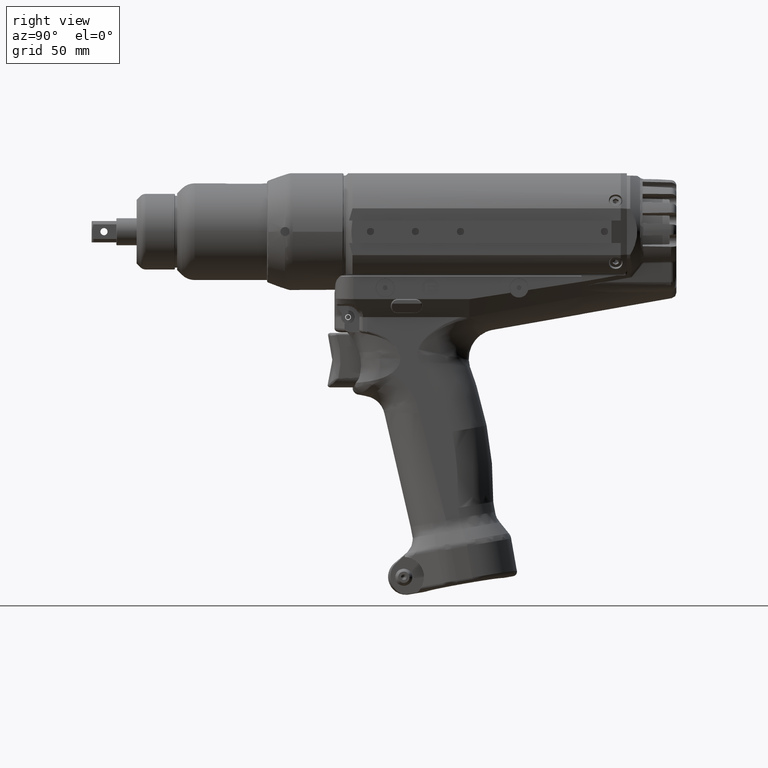
[diagram: clean part render]
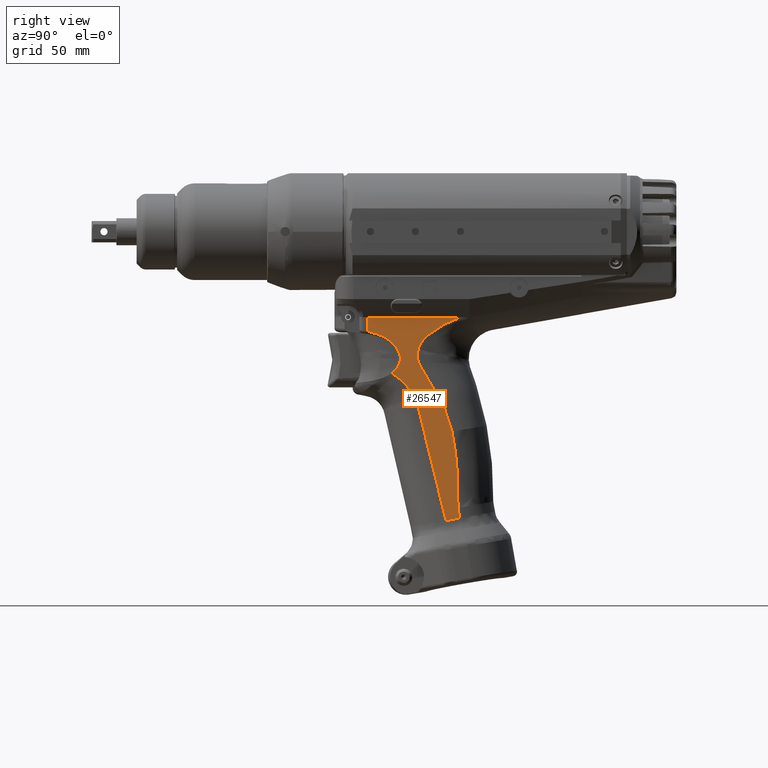
[diagram: same view with one face highlighted and labeled with its STEP entity id]
A machine part, right view. The second image highlights one B-rep face of the part: STEP entity #26547.
In plain terms, the highlighted planar face has unit normal (-0.9999, 0, -0.0109).
Its self-contained STEP definition (entity closure, byte-faithful):
#1692=PLANE('',#28280);
#2756=FACE_OUTER_BOUND('',#4246,.T.);
#4246=EDGE_LOOP('',(#17971,#17972,#17973,#17974,#17975,#17976,#17977,#17978,
#17979,#17980,#17981,#17982,#17983,#17984,#17985,#17986,#17987,#17988,#17989));
#5876=B_SPLINE_CURVE_WITH_KNOTS('',3,(#41228,#41229,#41230,#41231,#41232,
#41233,#41234,#41235,#41236,#41237,#41238,#41239,#41240,#41241,#41242,#41243,
#41244,#41245,#41246,#41247,#41248,#41249,#41250,#41251,#41252,#41253,#41254,
#41255,#41256,#41257,#41258,#41259,#41260,#41261,#41262,#41263,#41264,#41265,
#41266,#41267,#41268,#41269,#41270,#41271,#41272,#41273,#41274,#41275,#41276,
#41277,#41278,#41279,#41280,#41281,#41282,#41283,#41284,#41285),
 .UNSPECIFIED.,.F.,.F.,(4,3,3,3,3,3,3,3,3,3,3,3,3,3,3,3,3,3,3,4),(-24.3934761333663,
-23.9250824544193,-22.988187456572,-22.1116871300815,-21.235186803591,-20.3040838871517,
-19.3729809707125,-18.5207687351934,-17.6685564996742,-14.1078898008131,
-12.3238210145076,-10.539752228202,-8.74478813529345,-6.94982404238488,
-5.16176475116158,-3.37370545993828,-2.52633381548795,-1.67896217103761,
-0.841706468674242,-0.00447112501171354),.UNSPECIFIED.);
#5922=B_SPLINE_CURVE_WITH_KNOTS('',3,(#42125,#42126,#42127,#42128,#42129,
#42130,#42131,#42132,#42133,#42134,#42135,#42136,#42137,#42138,#42139,#42140),
 .UNSPECIFIED.,.F.,.F.,(4,3,3,3,3,4),(-0.00447112501171354,-0.00445076631087435,
1.73973864728295,3.64435240691651,5.57398196026563,6.91873043457296),
 .UNSPECIFIED.);
#5930=B_SPLINE_CURVE_WITH_KNOTS('',3,(#42380,#42381,#42382,#42383,#42384,
#42385,#42386,#42387,#42388,#42389,#42390,#42391),.UNSPECIFIED.,.F.,.F.,
(4,2,2,2,2,4),(-6.24408266172256,-5.46357232900724,-4.68306199629192,-3.12204133086128,
-1.56102066543064,0.),.UNSPECIFIED.);
#5947=B_SPLINE_CURVE_WITH_KNOTS('',3,(#43153,#43154,#43155,#43156,#43157,
#43158,#43159,#43160,#43161,#43162,#43163),.UNSPECIFIED.,.F.,.F.,(4,1,1,
1,1,1,1,1,4),(-17.5886699855604,-15.672631127508,-13.7574129878814,-11.8421816110542,
-9.71342270950494,-7.43435441818914,-5.03715648347555,-2.43703612575724,
0.),.UNSPECIFIED.);
#5954=B_SPLINE_CURVE_WITH_KNOTS('',3,(#43579,#43580,#43581,#43582,#43583,
#43584,#43585,#43586,#43587,#43588,#43589,#43590,#43591),.UNSPECIFIED.,
 .F.,.F.,(4,3,3,3,4),(0.,1.48689199211744,2.23033798817616,2.60206098620552,
2.97378398423488),.UNSPECIFIED.);
#5980=B_SPLINE_CURVE_WITH_KNOTS('',3,(#44639,#44640,#44641,#44642,#44643,
#44644),.UNSPECIFIED.,.F.,.F.,(4,2,4),(1.1081651686788E-5,2.07307480988454,
4.14614998655319),.UNSPECIFIED.);
#5981=B_SPLINE_CURVE_WITH_KNOTS('',3,(#44647,#44648,#44649,#44650,#44651,
#44652,#44653,#44654,#44655,#44656,#44657,#44658,#44659,#44660,#44661,#44662,
#44663,#44664,#44665,#44666,#44667,#44668),.UNSPECIFIED.,.F.,.F.,(4,3,3,
3,3,3,3,4),(20.4233136063262,21.9761058783196,23.5300501859846,25.0820865991997,
25.8595747815473,26.2485934611118,26.4431028008941,26.6376121406764),
 .UNSPECIFIED.);
#5982=B_SPLINE_CURVE_WITH_KNOTS('',3,(#44670,#44671,#44672,#44673),
 .UNSPECIFIED.,.F.,.F.,(4,4),(-7.97415008083827,-7.75616295434578),
 .UNSPECIFIED.);
#5983=B_SPLINE_CURVE_WITH_KNOTS('',3,(#44675,#44676,#44677,#44678,#44679,
#44680),.UNSPECIFIED.,.F.,.F.,(4,2,4),(-0.00118202678072736,-0.000618526325075613,
-5.44028565653205E-5),.UNSPECIFIED.);
#5984=B_SPLINE_CURVE_WITH_KNOTS('',3,(#44682,#44683,#44684,#44685,#44686,
#44687,#44688),.UNSPECIFIED.,.F.,.F.,(4,3,4),(-7.75095235003949,-7.75010030636978,
-7.65840554616275),.UNSPECIFIED.);
#5985=B_SPLINE_CURVE_WITH_KNOTS('',3,(#44690,#44691,#44692,#44693),
 .UNSPECIFIED.,.F.,.F.,(4,4),(-7.65840554616275,-7.63448467278944),
 .UNSPECIFIED.);
#5986=B_SPLINE_CURVE_WITH_KNOTS('',3,(#44695,#44696,#44697,#44698,#44699,
#44700,#44701,#44702,#44703,#44704,#44705,#44706,#44707,#44708,#44709,#44710,
#44711,#44712,#44713,#44714,#44715,#44716,#44717,#44718,#44719,#44720,#44721,
#44722,#44723,#44724,#44725),.UNSPECIFIED.,.F.,.F.,(4,3,3,3,3,3,3,3,3,3,
4),(-19.3844832505035,-18.9973493116529,-18.6117598995635,-18.3050002551452,
-18.2276842926308,-17.9210446763746,-17.8450926097978,-17.7307072142352,
-17.4634510021741,-17.0823978928591,-16.704075655191),.UNSPECIFIED.);
#5987=B_SPLINE_CURVE_WITH_KNOTS('',3,(#44727,#44728,#44729,#44730,#44731,
#44732,#44733,#44734,#44735,#44736,#44737,#44738,#44739,#44740),
 .UNSPECIFIED.,.F.,.F.,(4,2,2,2,2,2,4),(-16.7040756551934,-15.2337053032616,
-12.7368533167565,-10.2400013302513,-7.71910764693517,-5.19821396361902,
-3.94376769649692),.UNSPECIFIED.);
#5988=B_SPLINE_CURVE_WITH_KNOTS('',3,(#44742,#44743,#44744,#44745,#44746,
#44747,#44748,#44749,#44750,#44751,#44752,#44753,#44754,#44755,#44756,#44757,
#44758,#44759,#44760,#44761,#44762,#44763,#44764,#44765,#44766,#44767,#44768,
#44769,#44770,#44771,#44772,#44773,#44774,#44775,#44776,#44777,#44778,#44779,
#44780,#44781,#44782,#44783,#44784,#44785,#44786,#44787,#44788,#44789,#44790,
#44791,#44792,#44793,#44794,#44795,#44796,#44797,#44798,#44799,#44800,#44801,
#44802),.UNSPECIFIED.,.F.,.F.,(4,3,3,3,3,3,3,3,3,3,3,3,3,3,3,3,3,3,3,3,
4),(-3.94376769649643,-3.898660472714,-3.59717298899809,-3.38094055626665,
-3.07964959058576,-2.81869268346581,-2.67440053861103,-2.61551185927288,
-2.58257943400829,-2.24152410404669,-1.90596182350879,-1.66409435445553,
-1.3793206870938,-1.13048736599639,-1.09454701973207,-0.846963461157136,
-0.618629049818435,-0.538422388597726,-0.290249238729809,-0.0575168969333893,
1.08123714580309E-12),.UNSPECIFIED.);
#5989=B_SPLINE_CURVE_WITH_KNOTS('',3,(#44807,#44808,#44809,#44810,#44811,
#44812,#44813,#44814,#44815,#44816,#44817,#44818),.UNSPECIFIED.,.F.,.F.,
(4,2,2,2,2,4),(-34.0529674809779,-31.9246570134168,-29.7963465458556,-25.5397256107334,
-17.0264837404889,0.),.UNSPECIFIED.);
#5990=B_SPLINE_CURVE_WITH_KNOTS('',3,(#44819,#44820,#44821,#44822,#44823,
#44824,#44825,#44826,#44827,#44828,#44829,#44830,#44831,#44832,#44833,#44834,
#44835,#44836,#44837,#44838),.UNSPECIFIED.,.F.,.F.,(4,2,2,2,2,2,2,2,2,4),
(2.41384233712228E-8,4.41197645880191,8.82395291760381,13.2359293764057,
17.6479058352076,22.0598822940095,24.2658705234105,26.4718587528114,28.6778469822124,
29.2621880037137),.UNSPECIFIED.);
#7195=LINE('',#44645,#8748);
#7196=LINE('',#44803,#8749);
#7197=LINE('',#44805,#8750);
#8748=VECTOR('',#31418,10.);
#8749=VECTOR('',#31419,10.);
#8750=VECTOR('',#31420,10.);
#10494=VERTEX_POINT('',#41183);
#10498=VERTEX_POINT('',#41226);
#10514=VERTEX_POINT('',#41489);
#10580=VERTEX_POINT('',#42124);
#10587=VERTEX_POINT('',#42328);
#10590=VERTEX_POINT('',#42369);
#10606=VERTEX_POINT('',#43129);
#10607=VERTEX_POINT('',#43152);
#10612=VERTEX_POINT('',#43577);
#10638=VERTEX_POINT('',#44646);
#10639=VERTEX_POINT('',#44669);
#10640=VERTEX_POINT('',#44674);
#10641=VERTEX_POINT('',#44681);
#10642=VERTEX_POINT('',#44689);
#10643=VERTEX_POINT('',#44694);
#10644=VERTEX_POINT('',#44726);
#10645=VERTEX_POINT('',#44741);
#10646=VERTEX_POINT('',#44804);
#10647=VERTEX_POINT('',#44806);
#13287=EDGE_CURVE('',#10498,#10494,#5876,.T.);
#13392=EDGE_CURVE('',#10494,#10580,#5922,.T.);
#13404=EDGE_CURVE('',#10590,#10587,#5930,.T.);
#13428=EDGE_CURVE('',#10606,#10607,#5947,.T.);
#13436=EDGE_CURVE('',#10612,#10606,#5954,.T.);
#13470=EDGE_CURVE('',#10498,#10514,#5980,.T.);
#13471=EDGE_CURVE('',#10514,#10607,#7195,.T.);
#13472=EDGE_CURVE('',#10612,#10638,#5981,.T.);
#13473=EDGE_CURVE('',#10638,#10639,#5982,.T.);
#13474=EDGE_CURVE('',#10640,#10639,#5983,.T.);
#13475=EDGE_CURVE('',#10640,#10641,#5984,.T.);
#13476=EDGE_CURVE('',#10641,#10642,#5985,.T.);
#13477=EDGE_CURVE('',#10642,#10643,#5986,.T.);
#13478=EDGE_CURVE('',#10643,#10644,#5987,.T.);
#13479=EDGE_CURVE('',#10644,#10645,#5988,.T.);
#13480=EDGE_CURVE('',#10645,#10587,#7196,.T.);
#13481=EDGE_CURVE('',#10590,#10646,#7197,.T.);
#13482=EDGE_CURVE('',#10646,#10647,#5989,.T.);
#13483=EDGE_CURVE('',#10647,#10580,#5990,.T.);
#17971=ORIENTED_EDGE('',*,*,#13470,.T.);
#17972=ORIENTED_EDGE('',*,*,#13471,.T.);
#17973=ORIENTED_EDGE('',*,*,#13428,.F.);
#17974=ORIENTED_EDGE('',*,*,#13436,.F.);
#17975=ORIENTED_EDGE('',*,*,#13472,.T.);
#17976=ORIENTED_EDGE('',*,*,#13473,.T.);
#17977=ORIENTED_EDGE('',*,*,#13474,.F.);
#17978=ORIENTED_EDGE('',*,*,#13475,.T.);
#17979=ORIENTED_EDGE('',*,*,#13476,.T.);
#17980=ORIENTED_EDGE('',*,*,#13477,.T.);
#17981=ORIENTED_EDGE('',*,*,#13478,.T.);
#17982=ORIENTED_EDGE('',*,*,#13479,.T.);
#17983=ORIENTED_EDGE('',*,*,#13480,.T.);
#17984=ORIENTED_EDGE('',*,*,#13404,.F.);
#17985=ORIENTED_EDGE('',*,*,#13481,.T.);
#17986=ORIENTED_EDGE('',*,*,#13482,.T.);
#17987=ORIENTED_EDGE('',*,*,#13483,.T.);
#17988=ORIENTED_EDGE('',*,*,#13392,.F.);
#17989=ORIENTED_EDGE('',*,*,#13287,.F.);
#26547=ADVANCED_FACE('',(#2756),#1692,.F.);
#28280=AXIS2_PLACEMENT_3D('',#44638,#31416,#31417);
#31416=DIRECTION('center_axis',(-0.999940931510034,3.35670745567697E-15,
-0.010868923168598));
#31417=DIRECTION('ref_axis',(3.35650549535912E-15,1.,3.68227857356694E-17));
#31418=DIRECTION('',(0.0108689231680924,3.18609054585298E-14,-0.99994093151004));
#31419=DIRECTION('',(0.0105560679108472,0.23820207209503,-0.971158247805112));
#31420=DIRECTION('',(-0.0107038188680129,-0.173638229796094,0.984751335827944));
#41183=CARTESIAN_POINT('',(15.1558711698509,125.171963020733,-52.3401476261497));
#41226=CARTESIAN_POINT('',(14.999999647428,143.961452879267,-37.9999676564713));
#41228=CARTESIAN_POINT('Ctrl Pts',(14.9999998699428,143.961389048973,-37.9999880346182));
#41229=CARTESIAN_POINT('Ctrl Pts',(15.0005160295455,143.812648235737,-38.0474747180641));
#41230=CARTESIAN_POINT('Ctrl Pts',(15.0010478514908,143.664365869685,-38.0964023370349));
#41231=CARTESIAN_POINT('Ctrl Pts',(15.0015953554624,143.516581610311,-38.1467727024196));
#41232=CARTESIAN_POINT('Ctrl Pts',(15.0026904892256,143.220979129765,-38.2475250086308));
#41233=CARTESIAN_POINT('Ctrl Pts',(15.0038483655099,142.927369533828,-38.3540496267845));
#41234=CARTESIAN_POINT('Ctrl Pts',(15.0050542851966,142.635445314385,-38.4649942379659));
#41235=CARTESIAN_POINT('Ctrl Pts',(15.0061824681857,142.362339284104,-38.5687870729648));
#41236=CARTESIAN_POINT('Ctrl Pts',(15.0073527002144,142.090708346328,-38.6764484196063));
#41237=CARTESIAN_POINT('Ctrl Pts',(15.0085560374265,141.820332589124,-38.7871554431151));
#41238=CARTESIAN_POINT('Ctrl Pts',(15.0097593746385,141.549956831919,-38.8978624666238));
#41239=CARTESIAN_POINT('Ctrl Pts',(15.0109958170339,141.280836255287,-39.0116151669999));
#41240=CARTESIAN_POINT('Ctrl Pts',(15.0122555689134,141.012641446003,-39.12751233991));
#41241=CARTESIAN_POINT('Ctrl Pts',(15.0135937984765,140.727739134447,-39.2506294597127));
#41242=CARTESIAN_POINT('Ctrl Pts',(15.0149583321652,140.443881526437,-39.3761665590753));
#41243=CARTESIAN_POINT('Ctrl Pts',(15.0163374693176,140.160639330941,-39.5030471770953));
#41244=CARTESIAN_POINT('Ctrl Pts',(15.01771660647,139.877397135445,-39.6299277951152));
#41245=CARTESIAN_POINT('Ctrl Pts',(15.019110347086,139.594770352462,-39.7581519317925));
#41246=CARTESIAN_POINT('Ctrl Pts',(15.0205249205934,139.313003127159,-39.8882926944744));
#41247=CARTESIAN_POINT('Ctrl Pts',(15.0218196398235,139.055109533732,-40.0074068636378));
#41248=CARTESIAN_POINT('Ctrl Pts',(15.0231318112344,138.797936011074,-40.1281266334423));
#41249=CARTESIAN_POINT('Ctrl Pts',(15.0244609841946,138.541537674489,-40.2504105457811));
#41250=CARTESIAN_POINT('Ctrl Pts',(15.0257901571548,138.285139337903,-40.37269445812));
#41251=CARTESIAN_POINT('Ctrl Pts',(15.0271363316643,138.029516187389,-40.4965425129933));
#41252=CARTESIAN_POINT('Ctrl Pts',(15.0285048241678,137.774885143778,-40.6224438233178));
#41253=CARTESIAN_POINT('Ctrl Pts',(15.0342225849343,136.710999600138,-41.148477813832));
#41254=CARTESIAN_POINT('Ctrl Pts',(15.0403299486828,135.664433167134,-41.7103552786972));
#41255=CARTESIAN_POINT('Ctrl Pts',(15.0469257459552,134.644453238441,-42.3171686277561));
#41256=CARTESIAN_POINT('Ctrl Pts',(15.0502305641338,134.133393229927,-42.6212119001904));
#41257=CARTESIAN_POINT('Ctrl Pts',(15.0536580036386,133.629007768215,-42.9365363346255));
#41258=CARTESIAN_POINT('Ctrl Pts',(15.0572115562324,133.132237531042,-43.2634631732579));
#41259=CARTESIAN_POINT('Ctrl Pts',(15.0607651088262,132.635467293869,-43.5903900118904));
#41260=CARTESIAN_POINT('Ctrl Pts',(15.0644447745092,132.146312281235,-43.9289192547201));
#41261=CARTESIAN_POINT('Ctrl Pts',(15.0682710528773,131.667027830585,-44.2809368645917));
#41262=CARTESIAN_POINT('Ctrl Pts',(15.0721206983243,131.184816390191,-44.6351042457157));
#41263=CARTESIAN_POINT('Ctrl Pts',(15.0761187526517,130.712596438936,-45.002925243829));
#41264=CARTESIAN_POINT('Ctrl Pts',(15.0802788032596,130.252696800925,-45.3856498997554));
#41265=CARTESIAN_POINT('Ctrl Pts',(15.0844388538675,129.792797162914,-45.7683745556818));
#41266=CARTESIAN_POINT('Ctrl Pts',(15.0887609007559,129.345217838148,-46.1660028694213));
#41267=CARTESIAN_POINT('Ctrl Pts',(15.0932806422594,128.915011758345,-46.5818190877376));
#41268=CARTESIAN_POINT('Ctrl Pts',(15.0977829973879,128.486460579426,-46.996035759558));
#41269=CARTESIAN_POINT('Ctrl Pts',(15.102481529088,128.075149241036,-47.428300675971));
#41270=CARTESIAN_POINT('Ctrl Pts',(15.107412948014,127.68865280925,-47.8819912171566));
#41271=CARTESIAN_POINT('Ctrl Pts',(15.1123443669399,127.302156377464,-48.3356817583422));
#41272=CARTESIAN_POINT('Ctrl Pts',(15.1175086730916,126.940474852281,-48.8107979243004));
#41273=CARTESIAN_POINT('Ctrl Pts',(15.1229134484271,126.611917786538,-49.3080372551614));
#41274=CARTESIAN_POINT('Ctrl Pts',(15.1254748027325,126.456212691936,-49.5436818512579));
#41275=CARTESIAN_POINT('Ctrl Pts',(15.1280901632169,126.307946910182,-49.7842950158283));
#41276=CARTESIAN_POINT('Ctrl Pts',(15.1307572126508,126.168037772011,-50.0296635637438));
#41277=CARTESIAN_POINT('Ctrl Pts',(15.1334242620846,126.02812863384,-50.2750321116593));
#41278=CARTESIAN_POINT('Ctrl Pts',(15.1361430004679,125.896576139252,-50.5251560429199));
#41279=CARTESIAN_POINT('Ctrl Pts',(15.1389116016931,125.774539811563,-50.7798673556399));
#41280=CARTESIAN_POINT('Ctrl Pts',(15.1416471512936,125.653960356348,-51.0315379188786));
#41281=CARTESIAN_POINT('Ctrl Pts',(15.1444313803147,125.542671215803,-51.2876869888241));
#41282=CARTESIAN_POINT('Ctrl Pts',(15.1472598548581,125.441842049554,-51.5479066468163));
#41283=CARTESIAN_POINT('Ctrl Pts',(15.1500882606243,125.341015335066,-51.8081199773101));
#41284=CARTESIAN_POINT('Ctrl Pts',(15.1529609097611,125.25064808619,-52.0724036978923));
#41285=CARTESIAN_POINT('Ctrl Pts',(15.1558711698509,125.171963020733,-52.3401476261497));
#41489=CARTESIAN_POINT('',(15.0000000000035,102.49999999999,-37.9999999999456));
#42124=CARTESIAN_POINT('',(15.2291780243094,125.775799653277,-59.0837872268992));
#42125=CARTESIAN_POINT('Ctrl Pts',(15.1558711698509,125.171963020733,-52.3401476261497));
#42126=CARTESIAN_POINT('Ctrl Pts',(15.1558712406184,125.171961107382,-52.3401541367665));
#42127=CARTESIAN_POINT('Ctrl Pts',(15.155871311386,125.171959194037,-52.3401606473854));
#42128=CARTESIAN_POINT('Ctrl Pts',(15.1558713821537,125.171957280699,-52.3401671580063));
#42129=CARTESIAN_POINT('Ctrl Pts',(15.1619318994902,125.008099602806,-52.897734752964));
#42130=CARTESIAN_POINT('Ctrl Pts',(15.1681625716927,124.894625846445,-53.4709565955931));
#42131=CARTESIAN_POINT('Ctrl Pts',(15.1744535447417,124.840326996598,-54.0497261161034));
#42132=CARTESIAN_POINT('Ctrl Pts',(15.1813231391431,124.781033931439,-54.681728801035));
#42133=CARTESIAN_POINT('Ctrl Pts',(15.1882646370315,124.792301768158,-55.3203466067616));
#42134=CARTESIAN_POINT('Ctrl Pts',(15.1951130403756,124.869455468561,-55.9503997144234));
#42135=CARTESIAN_POINT('Ctrl Pts',(15.2020513927945,124.947622529832,-56.5887281369575));
#42136=CARTESIAN_POINT('Ctrl Pts',(15.2088941891436,125.093417551913,-57.2182654010749));
#42137=CARTESIAN_POINT('Ctrl Pts',(15.2155470037483,125.291182423804,-57.8303243447108));
#42138=CARTESIAN_POINT('Ctrl Pts',(15.2201833145231,125.429003701098,-58.2568649359927));
#42139=CARTESIAN_POINT('Ctrl Pts',(15.2247273583601,125.59206476613,-58.6749169689939));
#42140=CARTESIAN_POINT('Ctrl Pts',(15.2291716010589,125.775799651956,-59.0837872972794));
#42328=CARTESIAN_POINT('',(15.9825582871778,137.56783920862,-128.395362420582));
#42369=CARTESIAN_POINT('',(15.9708522178868,143.67564565747,-127.31840404528));
#42380=CARTESIAN_POINT('Ctrl Pts',(15.9708522178868,143.67564565747,-127.31840404528));
#42381=CARTESIAN_POINT('Ctrl Pts',(15.971339761677,143.42115890156,-127.363258073978));
#42382=CARTESIAN_POINT('Ctrl Pts',(15.9718273467927,143.16666394453,-127.408115904624));
#42383=CARTESIAN_POINT('Ctrl Pts',(15.9728025924035,142.65766114738,-127.497838500819));
#42384=CARTESIAN_POINT('Ctrl Pts',(15.9732902217631,142.40316955707,-127.542700401895));
#42385=CARTESIAN_POINT('Ctrl Pts',(15.974753175511,141.63969977401,-127.677292146699));
#42386=CARTESIAN_POINT('Ctrl Pts',(15.9757285825478,141.13071770756,-127.767029594078));
#42387=CARTESIAN_POINT('Ctrl Pts',(15.9776796450045,140.11272640543,-127.946527340134));
#42388=CARTESIAN_POINT('Ctrl Pts',(15.9786552083695,139.60376519532,-128.036279169746));
#42389=CARTESIAN_POINT('Ctrl Pts',(15.9806066447896,138.58578137278,-128.215811320567));
#42390=CARTESIAN_POINT('Ctrl Pts',(15.9815823680846,138.07683688189,-128.305577863828));
#42391=CARTESIAN_POINT('Ctrl Pts',(15.9825582871778,137.56783920862,-128.395362420582));
#43129=CARTESIAN_POINT('',(15.1688973131722,116.57692770531,-53.5385526784419));
#43152=CARTESIAN_POINT('',(15.0681802542457,102.49999999999,-44.2725833905217));
#43153=CARTESIAN_POINT('Ctrl Pts',(15.1688973131723,116.576927705311,-53.5385526784418));
#43154=CARTESIAN_POINT('Ctrl Pts',(15.1625040729347,116.32825763181,-52.9503748132206));
#43155=CARTESIAN_POINT('Ctrl Pts',(15.1500767325315,115.75162569241,-51.807059434948));
#43156=CARTESIAN_POINT('Ctrl Pts',(15.1330791029232,114.63528885117,-50.2432775266622));
#43157=CARTESIAN_POINT('Ctrl Pts',(15.1176490432641,113.23746246197,-48.8237120242572));
#43158=CARTESIAN_POINT('Ctrl Pts',(15.1039325726901,111.54209595244,-47.5617967247662));
#43159=CARTESIAN_POINT('Ctrl Pts',(15.0920538220522,109.54918523333,-46.4689516566661));
#43160=CARTESIAN_POINT('Ctrl Pts',(15.082058445801,107.30158884701,-45.549377032257));
#43161=CARTESIAN_POINT('Ctrl Pts',(15.0741459308862,104.93066526513,-44.8214256506598));
#43162=CARTESIAN_POINT('Ctrl Pts',(15.069979083427,103.29529043867,-44.4380756781941));
#43163=CARTESIAN_POINT('Ctrl Pts',(15.0681802542457,102.49999999999,-44.2725833905217));
#43577=CARTESIAN_POINT('',(15.199768354842,117.259898660441,-56.378680936898));
#43579=CARTESIAN_POINT('Ctrl Pts',(15.1997682710501,117.259898666644,-56.3786809364617));
#43580=CARTESIAN_POINT('Ctrl Pts',(15.1944291918548,117.260140466297,-55.8874856162011));
#43581=CARTESIAN_POINT('Ctrl Pts',(15.1890931764898,117.199197156114,-55.3965721681973));
#43582=CARTESIAN_POINT('Ctrl Pts',(15.1839085533817,117.082213968662,-54.9195868086727));
#43583=CARTESIAN_POINT('Ctrl Pts',(15.1813162418276,117.023722374936,-54.6810941289104));
#43584=CARTESIAN_POINT('Ctrl Pts',(15.1787601810731,116.951612061502,-54.4459365229081));
#43585=CARTESIAN_POINT('Ctrl Pts',(15.176254917576,116.866871522676,-54.2154522648893));
#43586=CARTESIAN_POINT('Ctrl Pts',(15.1750022858274,116.824501253263,-54.1002101358799));
#43587=CARTESIAN_POINT('Ctrl Pts',(15.1737621423771,116.779020685761,-53.9861169303708));
#43588=CARTESIAN_POINT('Ctrl Pts',(15.1725354848746,116.730639262748,-53.8732644321481));
#43589=CARTESIAN_POINT('Ctrl Pts',(15.1713088273721,116.682257839734,-53.7604119339254));
#43590=CARTESIAN_POINT('Ctrl Pts',(15.1700958257139,116.630955382008,-53.6488157734641));
#43591=CARTESIAN_POINT('Ctrl Pts',(15.1688973138965,116.57692770531,-53.5385526784341));
#44638=CARTESIAN_POINT('Origin',(15.9923838752004,144.376114864269,-129.299316518227));
#44639=CARTESIAN_POINT('Ctrl Pts',(14.9999998699428,143.961389048973,-37.9999880346182));
#44640=CARTESIAN_POINT('Ctrl Pts',(14.9999996907636,137.05117662155,-37.9999715501302));
#44641=CARTESIAN_POINT('Ctrl Pts',(15.0000042940015,130.140964194098,-37.9999664157842));
#44642=CARTESIAN_POINT('Ctrl Pts',(15.0000044486189,116.320501177767,-37.9999806405892));
#44643=CARTESIAN_POINT('Ctrl Pts',(15.000000000001,109.410250588885,-37.999999999977));
#44644=CARTESIAN_POINT('Ctrl Pts',(15.0000000000007,102.49999999999,-37.9999999999555));
#44645=CARTESIAN_POINT('',(15.0000000000035,102.49999999999,-37.9999999999456));
#44646=CARTESIAN_POINT('',(15.2675362399024,113.756682211606,-62.6054965537177));
#44647=CARTESIAN_POINT('Ctrl Pts',(15.1997682710641,117.259898666644,-56.378680937761));
#44648=CARTESIAN_POINT('Ctrl Pts',(15.2064793944922,117.25986946692,-56.9961042931518));
#44649=CARTESIAN_POINT('Ctrl Pts',(15.2132078667885,117.162689793147,-57.6151237444102));
#44650=CARTESIAN_POINT('Ctrl Pts',(15.2196315186217,116.981797970113,-58.2060997130656));
#44651=CARTESIAN_POINT('Ctrl Pts',(15.2260599362412,116.800771941212,-58.7975141340557));
#44652=CARTESIAN_POINT('Ctrl Pts',(15.2321909833736,116.537568804662,-59.3615704702397));
#44653=CARTESIAN_POINT('Ctrl Pts',(15.2379266785094,116.215405294413,-59.889254422733));
#44654=CARTESIAN_POINT('Ctrl Pts',(15.2436553315004,115.893637328566,-60.4162904978993));
#44655=CARTESIAN_POINT('Ctrl Pts',(15.2489838264981,115.514050579671,-60.9065120376864));
#44656=CARTESIAN_POINT('Ctrl Pts',(15.2539138275044,115.096271191904,-61.3600721302674));
#44657=CARTESIAN_POINT('Ctrl Pts',(15.2563834973451,114.886985807843,-61.587281755611));
#44658=CARTESIAN_POINT('Ctrl Pts',(15.2587558187064,114.667975550393,-61.8055353208523));
#44659=CARTESIAN_POINT('Ctrl Pts',(15.2610328083369,114.441164542103,-62.0150183668626));
#44660=CARTESIAN_POINT('Ctrl Pts',(15.2621721073251,114.327678934272,-62.1198338737737));
#44661=CARTESIAN_POINT('Ctrl Pts',(15.2632876214586,114.212220150802,-62.2224611740543));
#44662=CARTESIAN_POINT('Ctrl Pts',(15.2643796009418,114.095022683348,-62.32292328651));
#44663=CARTESIAN_POINT('Ctrl Pts',(15.2649255906834,114.036423949621,-62.3731543427379));
#44664=CARTESIAN_POINT('Ctrl Pts',(15.2654656595172,113.977396230372,-62.4228406754417));
#44665=CARTESIAN_POINT('Ctrl Pts',(15.2659999310478,113.917951393948,-62.4719936562568));
#44666=CARTESIAN_POINT('Ctrl Pts',(15.2665342025784,113.858506557524,-62.521146637072));
#44667=CARTESIAN_POINT('Ctrl Pts',(15.2671464116962,113.787604489531,-62.5774698759139));
#44668=CARTESIAN_POINT('Ctrl Pts',(15.267451058243,113.756682407655,-62.6054973582148));
#44669=CARTESIAN_POINT('',(15.2699423246869,113.458944584264,-62.8352501246363));
#44670=CARTESIAN_POINT('Ctrl Pts',(15.267621420559,113.756682177801,-62.6054956487715));
#44671=CARTESIAN_POINT('Ctrl Pts',(15.2677334251839,113.738560503677,-62.6167151372213));
#44672=CARTESIAN_POINT('Ctrl Pts',(15.2689767883663,113.584920864078,-62.7395941299465));
#44673=CARTESIAN_POINT('Ctrl Pts',(15.2699423246869,113.458944584264,-62.8352501246363));
#44674=CARTESIAN_POINT('',(15.2700221935842,113.449945992224,-62.8420418096064));
#44675=CARTESIAN_POINT('Ctrl Pts',(15.2700222832344,113.44995220126,-62.8420500574238));
#44676=CARTESIAN_POINT('Ctrl Pts',(15.2700100202706,113.451452999172,-62.8409218647589));
#44677=CARTESIAN_POINT('Ctrl Pts',(15.2699977189136,113.452957711381,-62.8397901497253));
#44678=CARTESIAN_POINT('Ctrl Pts',(15.2699731921617,113.45595644086,-62.8375336885501));
#44679=CARTESIAN_POINT('Ctrl Pts',(15.2699608994804,113.457458684649,-62.8364027520636));
#44680=CARTESIAN_POINT('Ctrl Pts',(15.2699486028636,113.458960702981,-62.8352714633098));
#44681=CARTESIAN_POINT('',(15.2705190896816,113.388963460674,-62.8877562505739));
#44682=CARTESIAN_POINT('Ctrl Pts',(15.2700221935842,113.449945992224,-62.8420418096064));
#44683=CARTESIAN_POINT('Ctrl Pts',(15.2700261883267,113.44945838483,-62.8424093259186));
#44684=CARTESIAN_POINT('Ctrl Pts',(15.2700301782506,113.448971277237,-62.8427763989173));
#44685=CARTESIAN_POINT('Ctrl Pts',(15.2700341633304,113.448484683672,-62.8431430262592));
#44686=CARTESIAN_POINT('Ctrl Pts',(15.2701963092753,113.428686040421,-62.8580604531909));
#44687=CARTESIAN_POINT('Ctrl Pts',(15.2703579822921,113.40884699635,-62.8729343707385));
#44688=CARTESIAN_POINT('Ctrl Pts',(15.2705190896816,113.388963460673,-62.8877562505739));
#44689=CARTESIAN_POINT('',(15.2706450592386,113.373392950379,-62.899345449826));
#44690=CARTESIAN_POINT('Ctrl Pts',(15.2705190896816,113.388963460673,-62.8877562505739));
#44691=CARTESIAN_POINT('Ctrl Pts',(15.2705611185768,113.383776342696,-62.8916229089292));
#44692=CARTESIAN_POINT('Ctrl Pts',(15.2706031089778,113.378586196807,-62.8954860258174));
#44693=CARTESIAN_POINT('Ctrl Pts',(15.2706450592387,113.373392950379,-62.899345449826));
#44694=CARTESIAN_POINT('',(15.2856867722895,115.5126203865,-64.2831830505117));
#44695=CARTESIAN_POINT('Ctrl Pts',(15.2706450592385,113.373392950379,-62.899345449826));
#44696=CARTESIAN_POINT('Ctrl Pts',(15.2713084360272,113.477612649185,-62.9603761143781));
#44697=CARTESIAN_POINT('Ctrl Pts',(15.2719818173467,113.581881631903,-63.0223271943705));
#44698=CARTESIAN_POINT('Ctrl Pts',(15.2726606219182,113.685522296395,-63.0847772107858));
#44699=CARTESIAN_POINT('Ctrl Pts',(15.2733367183009,113.788749471487,-63.1469780738412));
#44700=CARTESIAN_POINT('Ctrl Pts',(15.2740181543433,113.891347525536,-63.2096701830516));
#44701=CARTESIAN_POINT('Ctrl Pts',(15.2747207678569,113.995573576405,-63.2743106196871));
#44702=CARTESIAN_POINT('Ctrl Pts',(15.2752797393038,114.078491689043,-63.3257359875413));
#44703=CARTESIAN_POINT('Ctrl Pts',(15.275852159362,114.162446680976,-63.3783986278124));
#44704=CARTESIAN_POINT('Ctrl Pts',(15.2764218048294,114.245085574185,-63.4308060077607));
#44705=CARTESIAN_POINT('Ctrl Pts',(15.2765653787591,114.265913951339,-63.4440148085182));
#44706=CARTESIAN_POINT('Ctrl Pts',(15.276708774924,114.286658505893,-63.4572072550535));
#44707=CARTESIAN_POINT('Ctrl Pts',(15.2768517305272,114.307281124412,-63.4703591700604));
#44708=CARTESIAN_POINT('Ctrl Pts',(15.2774187007863,114.389071632128,-63.5225204319733));
#44709=CARTESIAN_POINT('Ctrl Pts',(15.2779787141737,114.468940234292,-63.5740416642263));
#44710=CARTESIAN_POINT('Ctrl Pts',(15.278548245291,114.549254222698,-63.6264385311084));
#44711=CARTESIAN_POINT('Ctrl Pts',(15.2786893133822,114.569147325451,-63.6394167965081));
#44712=CARTESIAN_POINT('Ctrl Pts',(15.2788309668586,114.589067964162,-63.6524489175565));
#44713=CARTESIAN_POINT('Ctrl Pts',(15.2789734589564,114.609052529125,-63.665558191977));
#44714=CARTESIAN_POINT('Ctrl Pts',(15.2791880550261,114.639149700558,-63.6853010325305));
#44715=CARTESIAN_POINT('Ctrl Pts',(15.2794045536025,114.669391925458,-63.7052189041665));
#44716=CARTESIAN_POINT('Ctrl Pts',(15.2796225852997,114.699724850288,-63.725277823338));
#44717=CARTESIAN_POINT('Ctrl Pts',(15.280132006325,114.770596333058,-63.7721445647557));
#44718=CARTESIAN_POINT('Ctrl Pts',(15.2806485689222,114.841792728453,-63.8196683287819));
#44719=CARTESIAN_POINT('Ctrl Pts',(15.2811682523671,114.912722438572,-63.8674792092379));
#44720=CARTESIAN_POINT('Ctrl Pts',(15.2819092154714,115.013853807514,-63.9356478198618));
#44721=CARTESIAN_POINT('Ctrl Pts',(15.2826565257611,115.114444858273,-64.0044003684958));
#44722=CARTESIAN_POINT('Ctrl Pts',(15.283411213312,115.214639477475,-64.0738316239914));
#44723=CARTESIAN_POINT('Ctrl Pts',(15.2841604922865,115.314116037598,-64.142765290457));
#44724=CARTESIAN_POINT('Ctrl Pts',(15.2849170214996,115.413199068221,-64.2123659778495));
#44725=CARTESIAN_POINT('Ctrl Pts',(15.2856867722895,115.5126203865,-64.2831830505115));
#44726=CARTESIAN_POINT('',(15.4066998092075,124.31370751695,-75.4163824469673));
#44727=CARTESIAN_POINT('Ctrl Pts',(15.2856867722895,115.5126203865,-64.2831830505117));
#44728=CARTESIAN_POINT('Ctrl Pts',(15.2886783381984,115.899034484669,-64.5584071141286));
#44729=CARTESIAN_POINT('Ctrl Pts',(15.291814044741,116.28328876782,-64.8468921160476));
#44730=CARTESIAN_POINT('Ctrl Pts',(15.300731270686,117.316982096829,-65.6672769029896));
#44731=CARTESIAN_POINT('Ctrl Pts',(15.306809165894,117.96070402071,-66.2264432621285));
#44732=CARTESIAN_POINT('Ctrl Pts',(15.3199642862879,119.216613559169,-67.4367143383605));
#44733=CARTESIAN_POINT('Ctrl Pts',(15.3270128049837,119.82743650678,-68.0851780583704));
#44734=CARTESIAN_POINT('Ctrl Pts',(15.3424435552195,121.01566506328,-69.5048070800673));
#44735=CARTESIAN_POINT('Ctrl Pts',(15.3508596008157,121.59455789784,-70.2790832749165));
#44736=CARTESIAN_POINT('Ctrl Pts',(15.3692690691609,122.68778605868,-71.9727543626723));
#44737=CARTESIAN_POINT('Ctrl Pts',(15.3792518075479,123.20100387143,-72.8911662942765));
#44738=CARTESIAN_POINT('Ctrl Pts',(15.3953276052431,123.89009263625,-74.3701396822353));
#44739=CARTESIAN_POINT('Ctrl Pts',(15.4008831750343,124.107484782681,-74.8812521030252));
#44740=CARTESIAN_POINT('Ctrl Pts',(15.4066998092075,124.31370751695,-75.4163824469673));
#44741=CARTESIAN_POINT('',(15.4639503978983,125.865236035306,-80.6834366065205));
#44742=CARTESIAN_POINT('Ctrl Pts',(15.4066998092074,124.31370751695,-75.4163824469673));
#44743=CARTESIAN_POINT('Ctrl Pts',(15.4069089632164,124.32112280159,-75.4356246158002));
#44744=CARTESIAN_POINT('Ctrl Pts',(15.4071184578343,124.328522517588,-75.4548981206469));
#44745=CARTESIAN_POINT('Ctrl Pts',(15.4073282947059,124.335906847366,-75.4742031128327));
#44746=CARTESIAN_POINT('Ctrl Pts',(15.4087308015573,124.385262201496,-75.6032337431659));
#44747=CARTESIAN_POINT('Ctrl Pts',(15.410150537629,124.433993508359,-75.7338494617655));
#44748=CARTESIAN_POINT('Ctrl Pts',(15.4115809770143,124.481929434235,-75.8654498852108));
#44749=CARTESIAN_POINT('Ctrl Pts',(15.4126069147559,124.516309972158,-75.9598361574346));
#44750=CARTESIAN_POINT('Ctrl Pts',(15.4136383574024,124.550282685932,-76.0547288809083));
#44751=CARTESIAN_POINT('Ctrl Pts',(15.4146728496672,124.583800109119,-76.1499021692725));
#44752=CARTESIAN_POINT('Ctrl Pts',(15.4161142762355,124.630502154097,-76.2825134135528));
#44753=CARTESIAN_POINT('Ctrl Pts',(15.4175616420188,124.676319148105,-76.4156710656193));
#44754=CARTESIAN_POINT('Ctrl Pts',(15.4190094929477,124.721086479102,-76.548873351083));
#44755=CARTESIAN_POINT('Ctrl Pts',(15.420263518934,124.759860772285,-76.6642437418193));
#44756=CARTESIAN_POINT('Ctrl Pts',(15.4215179112597,124.797848431808,-76.7796478357858));
#44757=CARTESIAN_POINT('Ctrl Pts',(15.4227688469781,124.834961330136,-76.8947339218732));
#44758=CARTESIAN_POINT('Ctrl Pts',(15.4234605328195,124.855482341673,-76.9583690192835));
#44759=CARTESIAN_POINT('Ctrl Pts',(15.4241511489602,124.875736031929,-77.0219057042252));
#44760=CARTESIAN_POINT('Ctrl Pts',(15.4248386716359,124.895681248827,-77.0851577903921));
#44761=CARTESIAN_POINT('Ctrl Pts',(15.4251192641964,124.903821314132,-77.1109723059605));
#44762=CARTESIAN_POINT('Ctrl Pts',(15.4253993421435,124.911910035301,-77.1367394770942));
#44763=CARTESIAN_POINT('Ctrl Pts',(15.425678770979,124.919944771238,-77.1624469299568));
#44764=CARTESIAN_POINT('Ctrl Pts',(15.4258350364844,124.924438051505,-77.1768233564561));
#44765=CARTESIAN_POINT('Ctrl Pts',(15.4259910429712,124.928912854048,-77.1911759532378));
#44766=CARTESIAN_POINT('Ctrl Pts',(15.4261471026476,124.933378304979,-77.2055334434679));
#44767=CARTESIAN_POINT('Ctrl Pts',(15.4277632904626,124.979623482145,-77.354222722453));
#44768=CARTESIAN_POINT('Ctrl Pts',(15.4293794413394,125.024701293408,-77.5029086031126));
#44769=CARTESIAN_POINT('Ctrl Pts',(15.4309846399257,125.06842740294,-77.6505868730499));
#44770=CARTESIAN_POINT('Ctrl Pts',(15.4325639851257,125.111449258177,-77.7958866314547));
#44771=CARTESIAN_POINT('Ctrl Pts',(15.4341326990057,125.153161487522,-77.940208308414));
#44772=CARTESIAN_POINT('Ctrl Pts',(15.4357113921716,125.194225052921,-78.0854480796695));
#44773=CARTESIAN_POINT('Ctrl Pts',(15.4368492868116,125.223822958317,-78.1901343865545));
#44774=CARTESIAN_POINT('Ctrl Pts',(15.4379923633438,125.253083475221,-78.2952974275174));
#44775=CARTESIAN_POINT('Ctrl Pts',(15.4391485338783,125.282255893888,-78.4016651166846));
#44776=CARTESIAN_POINT('Ctrl Pts',(15.4405098038517,125.316603368074,-78.5269019542449));
#44777=CARTESIAN_POINT('Ctrl Pts',(15.441889299332,125.350830462354,-78.6538155384304));
#44778=CARTESIAN_POINT('Ctrl Pts',(15.4432760233855,125.384748775142,-78.781394151348));
#44779=CARTESIAN_POINT('Ctrl Pts',(15.4444877335652,125.414386369428,-78.8928714878847));
#44780=CARTESIAN_POINT('Ctrl Pts',(15.4457049675971,125.443788210743,-79.0048570188163));
#44781=CARTESIAN_POINT('Ctrl Pts',(15.4469199282367,125.472817252776,-79.116633397657));
#44782=CARTESIAN_POINT('Ctrl Pts',(15.4470954115919,125.477010074774,-79.1327778663399));
#44783=CARTESIAN_POINT('Ctrl Pts',(15.4472708465794,125.481195097847,-79.1489178851914));
#44784=CARTESIAN_POINT('Ctrl Pts',(15.4474462086988,125.485371886101,-79.1650512001729));
#44785=CARTESIAN_POINT('Ctrl Pts',(15.4486542320504,125.514144677874,-79.2761893485192));
#44786=CARTESIAN_POINT('Ctrl Pts',(15.4498587536659,125.542525482099,-79.3870053371471));
#44787=CARTESIAN_POINT('Ctrl Pts',(15.4510691991734,125.57079405864,-79.4983663238362));
#44788=CARTESIAN_POINT('Ctrl Pts',(15.4521855348623,125.596864807525,-79.6010692072106));
#44789=CARTESIAN_POINT('Ctrl Pts',(15.4533069060456,125.62283998611,-79.7042353560821));
#44790=CARTESIAN_POINT('Ctrl Pts',(15.4544411745813,125.648952302839,-79.8085880613624));
#44791=CARTESIAN_POINT('Ctrl Pts',(15.4548396072645,125.658124734315,-79.8452438682152));
#44792=CARTESIAN_POINT('Ctrl Pts',(15.4552396360331,125.667314221829,-79.8820465149222));
#44793=CARTESIAN_POINT('Ctrl Pts',(15.4556416179822,125.676531323725,-79.9190288542468));
#44794=CARTESIAN_POINT('Ctrl Pts',(15.4568854189958,125.705050615955,-80.0334585474917));
#44795=CARTESIAN_POINT('Ctrl Pts',(15.45814797178,125.733835197993,-80.1496134036392));
#44796=CARTESIAN_POINT('Ctrl Pts',(15.4594243332275,125.76282162157,-80.267038656805));
#44797=CARTESIAN_POINT('Ctrl Pts',(15.4606212821674,125.790004571228,-80.3771579592753));
#44798=CARTESIAN_POINT('Ctrl Pts',(15.4618303777221,125.81736506215,-80.4883947503074));
#44799=CARTESIAN_POINT('Ctrl Pts',(15.4630470426667,125.844843070379,-80.6003279252061));
#44800=CARTESIAN_POINT('Ctrl Pts',(15.4633477262403,125.851633917561,-80.6279908139756));
#44801=CARTESIAN_POINT('Ctrl Pts',(15.4636488694911,125.858431902094,-80.6556959930499));
#44802=CARTESIAN_POINT('Ctrl Pts',(15.4639503978983,125.865236035306,-80.6834366065201));
#44803=CARTESIAN_POINT('',(15.4639503978983,125.865236035306,-80.6834366065205));
#44804=CARTESIAN_POINT('',(15.9219828059743,142.882882039149,-122.822418149464));
#44805=CARTESIAN_POINT('',(15.9708522178868,143.67564565747,-127.31840404528));
#44806=CARTESIAN_POINT('',(15.5532677122156,140.221767082648,-88.931344681568));
#44807=CARTESIAN_POINT('Ctrl Pts',(15.9219828059743,142.882882039149,-122.822418149464));
#44808=CARTESIAN_POINT('Ctrl Pts',(15.9142609848867,142.896671968979,-122.112648950172));
#44809=CARTESIAN_POINT('Ctrl Pts',(15.9065414074758,142.910438039199,-121.403085985067));
#44810=CARTESIAN_POINT('Ctrl Pts',(15.891098762127,142.938055643659,-119.983639209327));
#44811=CARTESIAN_POINT('Ctrl Pts',(15.8833793032339,142.952880382869,-119.274087063251));
#44812=CARTESIAN_POINT('Ctrl Pts',(15.8602118795721,142.976841431679,-117.144600500977));
#44813=CARTESIAN_POINT('Ctrl Pts',(15.8447670062677,142.9718742813,-115.724951240006));
#44814=CARTESIAN_POINT('Ctrl Pts',(15.7984394716837,142.894089140679,-111.466659163731));
#44815=CARTESIAN_POINT('Ctrl Pts',(15.7675722938084,142.758165664499,-108.62944399833));
#44816=CARTESIAN_POINT('Ctrl Pts',(15.6751795418444,142.100131527629,-100.137006811327));
#44817=CARTESIAN_POINT('Ctrl Pts',(15.6138691902976,141.32573133728,-94.5015852697631));
#44818=CARTESIAN_POINT('Ctrl Pts',(15.5532677121638,140.22176708323,-88.9313446771146));
#44819=CARTESIAN_POINT('Ctrl Pts',(15.5532677118705,140.22176707788,-88.9313446501061));
#44820=CARTESIAN_POINT('Ctrl Pts',(15.5353982433867,139.895841690867,-87.2858211063208));
#44821=CARTESIAN_POINT('Ctrl Pts',(15.5177118682619,139.485257744232,-85.6571216324841));
#44822=CARTESIAN_POINT('Ctrl Pts',(15.4828989067345,138.495522434228,-82.4511976670698));
#44823=CARTESIAN_POINT('Ctrl Pts',(15.4657810316532,137.916305799948,-80.8747752718458));
#44824=CARTESIAN_POINT('Ctrl Pts',(15.4322504418459,136.604277135697,-77.7867971918714));
#44825=CARTESIAN_POINT('Ctrl Pts',(15.4158452190023,135.871549517319,-76.2759313812835));
#44826=CARTESIAN_POINT('Ctrl Pts',(15.3837424641826,134.285569618483,-73.3193130879153));
#44827=CARTESIAN_POINT('Ctrl Pts',(15.36805058494,133.432237967849,-71.8740810662735));
#44828=CARTESIAN_POINT('Ctrl Pts',(15.3371405011079,131.657104658542,-69.0272039733823));
#44829=CARTESIAN_POINT('Ctrl Pts',(15.3219261822979,130.73420831605,-67.6259162473224));
#44830=CARTESIAN_POINT('Ctrl Pts',(15.2990416176779,129.360205309485,-65.5181800291071));
#44831=CARTESIAN_POINT('Ctrl Pts',(15.2913953972263,128.904254695555,-64.813941756096));
#44832=CARTESIAN_POINT('Ctrl Pts',(15.2759562371504,128.014439672207,-63.3919646562554));
#44833=CARTESIAN_POINT('Ctrl Pts',(15.2681628442098,127.579952214704,-62.6741838323976));
#44834=CARTESIAN_POINT('Ctrl Pts',(15.2522765061432,126.759674367623,-61.2110599877243));
#44835=CARTESIAN_POINT('Ctrl Pts',(15.2441759205795,126.374086318402,-60.4650135320625));
#44836=CARTESIAN_POINT('Ctrl Pts',(15.2336406219395,125.944690074524,-59.494764924755));
#44837=CARTESIAN_POINT('Ctrl Pts',(15.2314179803503,125.858248684069,-59.2900723963737));
#44838=CARTESIAN_POINT('Ctrl Pts',(15.2291780246534,125.775799665924,-59.0837872585447));